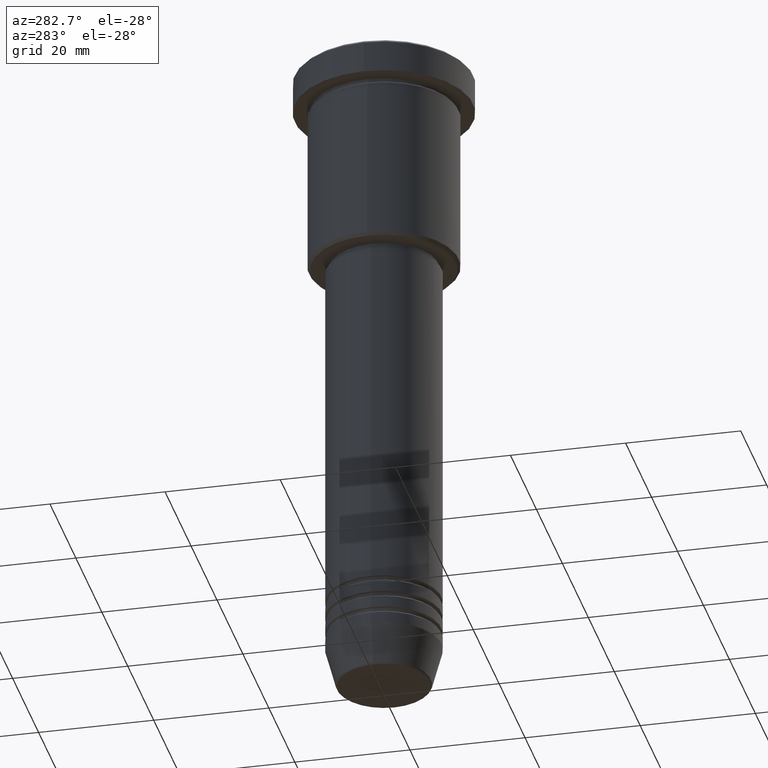
[diagram: clean part render]
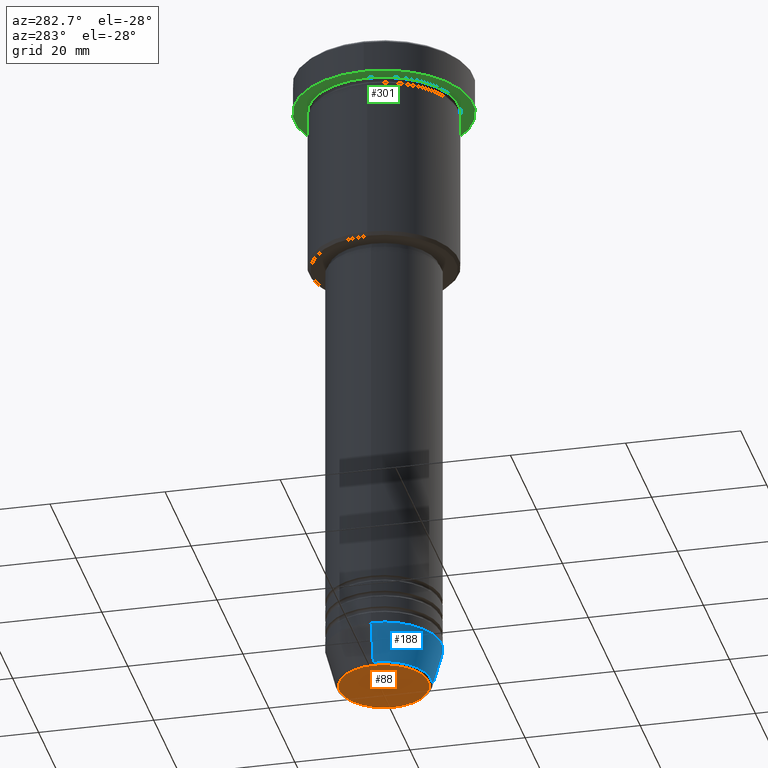
[diagram: same view with three faces highlighted in distinct colors, each labeled with its STEP entity id]
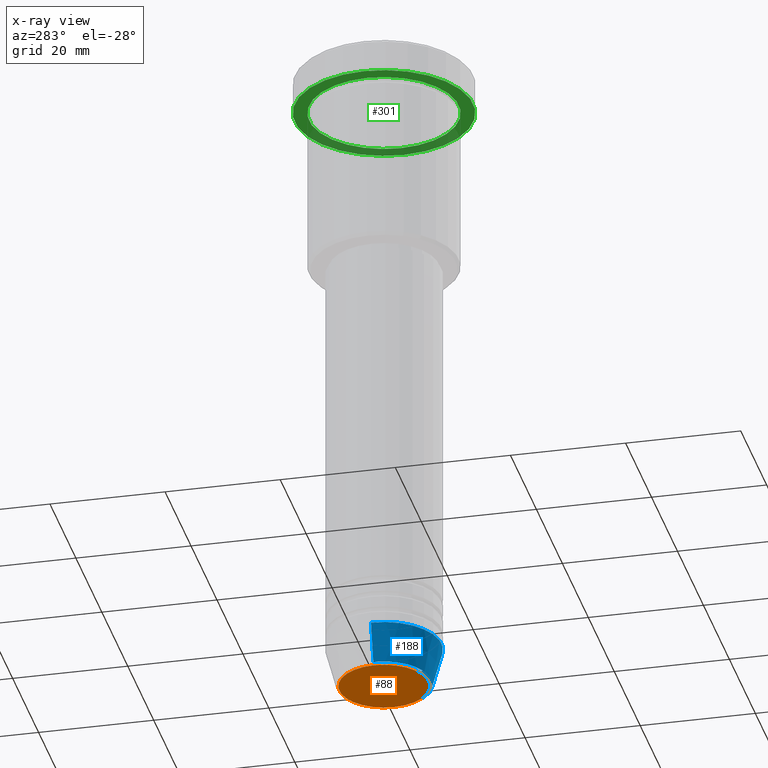
[diagram: x-ray of the same camera — body ghosted, the three highlighted faces saturated]
A machine part, auxiliary view with three faces highlighted in distinct colors.
The next image is the same camera in x-ray (body ghosted, the three faces saturated) — at least one of them is partly hidden behind the body in this view.
Their STEP definitions:

[orange] entity #88 — the highlighted planar face has unit normal (0, -0, 1).
#48 = VERTEX_POINT ( 'NONE', #978 ) ;
#88 = ADVANCED_FACE ( 'NONE', ( #284 ), #1009, .F. ) ;
#100 = DIRECTION ( 'NONE',  ( 0.000000000000000000, -0.000000000000000000, 1.000000000000000000 ) ) ;
#130 = VERTEX_POINT ( 'NONE', #190 ) ;
#190 = CARTESIAN_POINT ( 'NONE',  ( -7.740692158992658278, 9.775343368540041107E-16, -116.0000000000000000 ) ) ;
#200 = CARTESIAN_POINT ( 'NONE',  ( 0.000000000000000000, 0.000000000000000000, -116.0000000000000000 ) ) ;
#255 = CARTESIAN_POINT ( 'NONE',  ( 0.000000000000000000, 0.000000000000000000, -116.0000000000000000 ) ) ;
#264 = CIRCLE ( 'NONE', #500, 7.740692158992658278 ) ;
#284 = FACE_OUTER_BOUND ( 'NONE', #289, .T. ) ;
#289 = EDGE_LOOP ( 'NONE', ( #691, #666 ) ) ;
#329 = DIRECTION ( 'NONE',  ( 1.000000000000000000, 0.000000000000000000, 0.000000000000000000 ) ) ;
#435 = DIRECTION ( 'NONE',  ( 1.000000000000000000, 0.000000000000000000, 0.000000000000000000 ) ) ;
#500 = AXIS2_PLACEMENT_3D ( 'NONE', #255, #614, #435 ) ;
#614 = DIRECTION ( 'NONE',  ( 0.000000000000000000, 0.000000000000000000, -1.000000000000000000 ) ) ;
#666 = ORIENTED_EDGE ( 'NONE', *, *, #718, .T. ) ;
#691 = ORIENTED_EDGE ( 'NONE', *, *, #768, .T. ) ;
#714 = CIRCLE ( 'NONE', #1162, 7.740692158992658278 ) ;
#718 = EDGE_CURVE ( 'NONE', #130, #48, #714, .T. ) ;
#768 = EDGE_CURVE ( 'NONE', #48, #130, #264, .T. ) ;
#973 = DIRECTION ( 'NONE',  ( 0.000000000000000000, 0.000000000000000000, -1.000000000000000000 ) ) ;
#977 = DIRECTION ( 'NONE',  ( 1.000000000000000000, 0.000000000000000000, 0.000000000000000000 ) ) ;
#978 = CARTESIAN_POINT ( 'NONE',  ( 7.740692158992658278, 0.000000000000000000, -116.0000000000000000 ) ) ;
#1009 = PLANE ( 'NONE',  #1018 ) ;
#1018 = AXIS2_PLACEMENT_3D ( 'NONE', #200, #100, #329 ) ;
#1090 = CARTESIAN_POINT ( 'NONE',  ( 0.000000000000000000, 0.000000000000000000, -116.0000000000000000 ) ) ;
#1162 = AXIS2_PLACEMENT_3D ( 'NONE', #1090, #973, #977 ) ;

[blue] entity #188 — the highlighted conical surface has half-angle 15 deg.
#9 = CARTESIAN_POINT ( 'NONE',  ( 10.00000000000000000, 0.000000000000000000, -109.0000000000000142 ) ) ;
#27 = VERTEX_POINT ( 'NONE', #947 ) ;
#30 = CIRCLE ( 'NONE', #295, 10.00000000000000000 ) ;
#37 = EDGE_CURVE ( 'NONE', #27, #118, #260, .T. ) ;
#51 = CARTESIAN_POINT ( 'NONE',  ( 0.000000000000000000, 0.000000000000000000, -115.6294095225512706 ) ) ;
#62 = CARTESIAN_POINT ( 'NONE',  ( 0.000000000000000000, 0.000000000000000000, -109.0000000000000142 ) ) ;
#103 = DIRECTION ( 'NONE',  ( 0.2588190451025213501, 0.000000000000000000, 0.9659258262890680902 ) ) ;
#118 = VERTEX_POINT ( 'NONE', #452 ) ;
#159 = FACE_OUTER_BOUND ( 'NONE', #810, .T. ) ;
#188 = ADVANCED_FACE ( 'NONE', ( #159 ), #958, .T. ) ;
#221 = VERTEX_POINT ( 'NONE', #818 ) ;
#222 = EDGE_CURVE ( 'NONE', #118, #469, #380, .T. ) ;
#253 = DIRECTION ( 'NONE',  ( -0.000000000000000000, -0.000000000000000000, 1.000000000000000000 ) ) ;
#260 = CIRCLE ( 'NONE', #351, 8.223655072137191269 ) ;
#295 = AXIS2_PLACEMENT_3D ( 'NONE', #617, #343, #989 ) ;
#302 = ORIENTED_EDGE ( 'NONE', *, *, #37, .T. ) ;
#326 = DIRECTION ( 'NONE',  ( -0.000000000000000000, -0.000000000000000000, 1.000000000000000000 ) ) ;
#327 = ORIENTED_EDGE ( 'NONE', *, *, #382, .F. ) ;
#343 = DIRECTION ( 'NONE',  ( -0.000000000000000000, -0.000000000000000000, 1.000000000000000000 ) ) ;
#351 = AXIS2_PLACEMENT_3D ( 'NONE', #51, #326, #441 ) ;
#380 = LINE ( 'NONE', #9, #710 ) ;
#382 = EDGE_CURVE ( 'NONE', #221, #469, #30, .T. ) ;
#441 = DIRECTION ( 'NONE',  ( 1.000000000000000000, 0.000000000000000000, 0.000000000000000000 ) ) ;
#452 = CARTESIAN_POINT ( 'NONE',  ( 8.223655072137191269, 0.000000000000000000, -115.6294095225512706 ) ) ;
#469 = VERTEX_POINT ( 'NONE', #928 ) ;
#506 = EDGE_CURVE ( 'NONE', #27, #221, #649, .T. ) ;
#512 = ORIENTED_EDGE ( 'NONE', *, *, #506, .F. ) ;
#617 = CARTESIAN_POINT ( 'NONE',  ( 0.000000000000000000, 0.000000000000000000, -109.0000000000000142 ) ) ;
#649 = LINE ( 'NONE', #809, #915 ) ;
#710 = VECTOR ( 'NONE', #103, 1000.000000000000000 ) ;
#809 = CARTESIAN_POINT ( 'NONE',  ( -10.00000000000000000, 1.224646799147353256E-15, -109.0000000000000142 ) ) ;
#810 = EDGE_LOOP ( 'NONE', ( #512, #302, #1176, #327 ) ) ;
#818 = CARTESIAN_POINT ( 'NONE',  ( -10.00000000000000000, 1.224646799147353256E-15, -109.0000000000000142 ) ) ;
#915 = VECTOR ( 'NONE', #917, 1000.000000000000000 ) ;
#917 = DIRECTION ( 'NONE',  ( -0.2588190451025213501, 3.169619151431772337E-17, 0.9659258262890680902 ) ) ;
#928 = CARTESIAN_POINT ( 'NONE',  ( 10.00000000000000000, 0.000000000000000000, -109.0000000000000142 ) ) ;
#947 = CARTESIAN_POINT ( 'NONE',  ( -8.223655072137191269, 1.115877042642912054E-15, -115.6294095225512706 ) ) ;
#958 = CONICAL_SURFACE ( 'NONE', #1114, 10.00000000000000000, 0.2617993877991500740 ) ;
#989 = DIRECTION ( 'NONE',  ( 1.000000000000000000, 0.000000000000000000, 0.000000000000000000 ) ) ;
#1114 = AXIS2_PLACEMENT_3D ( 'NONE', #62, #253, #1137 ) ;
#1137 = DIRECTION ( 'NONE',  ( 1.000000000000000000, 0.000000000000000000, 0.000000000000000000 ) ) ;
#1176 = ORIENTED_EDGE ( 'NONE', *, *, #222, .T. ) ;

[green] entity #301 — the highlighted planar face has unit normal (0, 0, -1).
#43 = ORIENTED_EDGE ( 'NONE', *, *, #669, .F. ) ;
#47 = CIRCLE ( 'NONE', #518, 13.00000000000000000 ) ;
#76 = DIRECTION ( 'NONE',  ( 0.000000000000000000, 0.000000000000000000, -1.000000000000000000 ) ) ;
#122 = CARTESIAN_POINT ( 'NONE',  ( 0.000000000000000000, 0.000000000000000000, -5.999999999999995559 ) ) ;
#124 = EDGE_LOOP ( 'NONE', ( #43, #175 ) ) ;
#142 = CARTESIAN_POINT ( 'NONE',  ( 0.000000000000000000, 0.000000000000000000, -5.999999999999995559 ) ) ;
#161 = VERTEX_POINT ( 'NONE', #1115 ) ;
#171 = CIRCLE ( 'NONE', #1005, 13.00000000000000000 ) ;
#175 = ORIENTED_EDGE ( 'NONE', *, *, #615, .F. ) ;
#196 = EDGE_CURVE ( 'NONE', #1139, #775, #47, .T. ) ;
#207 = CIRCLE ( 'NONE', #524, 15.50000000000000000 ) ;
#296 = AXIS2_PLACEMENT_3D ( 'NONE', #318, #667, #332 ) ;
#301 = ADVANCED_FACE ( 'NONE', ( #796, #806 ), #979, .T. ) ;
#303 = DIRECTION ( 'NONE',  ( -1.000000000000000000, 0.000000000000000000, 0.000000000000000000 ) ) ;
#318 = CARTESIAN_POINT ( 'NONE',  ( 0.000000000000000000, 0.000000000000000000, -5.999999999999995559 ) ) ;
#332 = DIRECTION ( 'NONE',  ( 1.000000000000000000, 0.000000000000000000, 0.000000000000000000 ) ) ;
#355 = CIRCLE ( 'NONE', #296, 15.50000000000000000 ) ;
#411 = DIRECTION ( 'NONE',  ( -0.000000000000000000, -0.000000000000000000, 1.000000000000000000 ) ) ;
#436 = DIRECTION ( 'NONE',  ( -1.000000000000000000, 0.000000000000000000, -0.000000000000000000 ) ) ;
#445 = CARTESIAN_POINT ( 'NONE',  ( 13.00000000000000000, 1.592040838891559095E-15, -5.999999999999994671 ) ) ;
#460 = CARTESIAN_POINT ( 'NONE',  ( -15.50000000000000000, 1.898202538678397557E-15, -5.999999999999995559 ) ) ;
#518 = AXIS2_PLACEMENT_3D ( 'NONE', #142, #1145, #1126 ) ;
#524 = AXIS2_PLACEMENT_3D ( 'NONE', #122, #868, #849 ) ;
#615 = EDGE_CURVE ( 'NONE', #931, #161, #207, .T. ) ;
#658 = ORIENTED_EDGE ( 'NONE', *, *, #1023, .T. ) ;
#661 = EDGE_LOOP ( 'NONE', ( #761, #658 ) ) ;
#663 = CARTESIAN_POINT ( 'NONE',  ( 0.000000000000000000, 0.000000000000000000, -5.999999999999995559 ) ) ;
#667 = DIRECTION ( 'NONE',  ( -0.000000000000000000, -0.000000000000000000, 1.000000000000000000 ) ) ;
#669 = EDGE_CURVE ( 'NONE', #161, #931, #355, .T. ) ;
#761 = ORIENTED_EDGE ( 'NONE', *, *, #196, .T. ) ;
#775 = VERTEX_POINT ( 'NONE', #445 ) ;
#796 = FACE_BOUND ( 'NONE', #661, .T. ) ;
#806 = FACE_OUTER_BOUND ( 'NONE', #124, .T. ) ;
#849 = DIRECTION ( 'NONE',  ( 1.000000000000000000, 0.000000000000000000, 0.000000000000000000 ) ) ;
#868 = DIRECTION ( 'NONE',  ( -0.000000000000000000, -0.000000000000000000, 1.000000000000000000 ) ) ;
#889 = CARTESIAN_POINT ( 'NONE',  ( -13.00000000000000000, 0.000000000000000000, -5.999999999999994671 ) ) ;
#899 = AXIS2_PLACEMENT_3D ( 'NONE', #1182, #76, #436 ) ;
#931 = VERTEX_POINT ( 'NONE', #460 ) ;
#979 = PLANE ( 'NONE',  #899 ) ;
#1005 = AXIS2_PLACEMENT_3D ( 'NONE', #663, #411, #303 ) ;
#1023 = EDGE_CURVE ( 'NONE', #775, #1139, #171, .T. ) ;
#1115 = CARTESIAN_POINT ( 'NONE',  ( 15.50000000000000000, 0.000000000000000000, -5.999999999999995559 ) ) ;
#1126 = DIRECTION ( 'NONE',  ( -1.000000000000000000, 0.000000000000000000, 0.000000000000000000 ) ) ;
#1139 = VERTEX_POINT ( 'NONE', #889 ) ;
#1145 = DIRECTION ( 'NONE',  ( -0.000000000000000000, -0.000000000000000000, 1.000000000000000000 ) ) ;
#1182 = CARTESIAN_POINT ( 'NONE',  ( 0.000000000000000000, 15.50000000000000000, -5.999999999999995559 ) ) ;